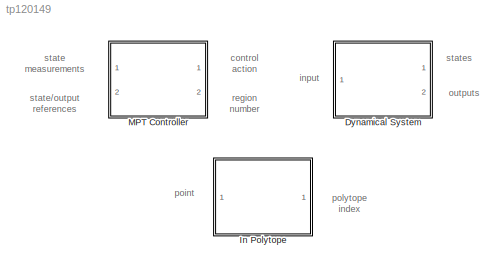
MODEL tp120149
KIND library
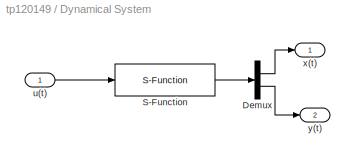
BLOCK [SubSystem] Dynamical System
  MaskCallbackString = |||
  MaskDescription = Gives state update and output as a function of current state and current input.
  MaskEnableString = on,on,on,on
  MaskHelp = This is equivalent to simulating a system using \"mpt_simSys\".
  MaskIconFrame = on
  MaskIconOpaque = on
  MaskIconRotate = none
  MaskIconUnits = autoscale
  MaskInitialization = if isempty(x0)\n	error('Initial state must be given!');\nend\nif ~isfield(sysStruct,'verified')\n	sysStruct = mpt_verifySysStruct(sysStruct);\nend\n[nx,nu,ny] = mpt_sysStructInfo(sysStruct);\nif length(x0(:))~=nx\n	error(['Initial state must be a ' num2str(nx) 'x1 vector!']);\nend\nif isfield(sysStruct, 'Ts')\n	ts = sysStruct.Ts;\nelse\n	ts = 1;\nend\nif isempty(Ts)\n	Ts = ts;\nelseif Ts==0\n	Ts =...<+135ch>
  MaskPromptString = System Structure|Initial State|Sampling Time (Leave empty to use default value stored in sysStruct)|Enforce Constraints
  MaskStyleString = edit,edit,edit,checkbox
  MaskToolTipString = on,on,on,on
  MaskTunableValueString = on,on,on,on
  MaskType = Dynamical System with Constraints
  MaskValueString = sysStruct|0|[]|on
  MaskVariables = sysStruct=@1;x0=@2;Ts=@3;constr=@4;
  MaskVisibilityString = on,on,on,on
  Permissions = ReadWrite
  Ports = [1, 2]
  RTWFcnNameOpts = Auto
  RTWFileNameOpts = Auto
  RTWSystemCode = Auto
  ShowPortLabels = on
  SimViewingDevice = off
  TreatAsAtomicUnit = off
BLOCK [Demux] Dynamical System/Demux
  BusSelectionMode = off
  Outputs = [nx ny]
  Ports = [1, 2]
BLOCK [S-Function] Dynamical System/S-Function
  FunctionName = mpt_simSys_sfunc
  Parameters = sysStruct,x0,Ts,nx,nu,ny,constr
  PortCounts = []
  Ports = [1, 1]
  SFunctionModules = ''
BLOCK [Inport] Dynamical System/u(t)
  DataType = auto
  Interpolate = on
  Port = 1
  PortDimensions = -1
  SampleTime = -1
  SignalType = auto
BLOCK [Outport] Dynamical System/x(t)
  InitialOutput = []
  OutputWhenDisabled = held
  Port = 1
BLOCK [Outport] Dynamical System/y(t)
  InitialOutput = []
  OutputWhenDisabled = held
  Port = 2
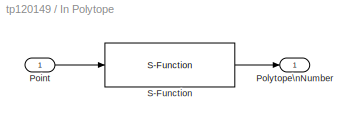
BLOCK [SubSystem] In Polytope
  AncestorBlock = mpt_sim/Polytope
  MaskDescription = Returns 0 if a given point is not inside of a given polytope, 1 otherwise.
  MaskDisplay = image(imread('mpt_polytope.jpg'));
  MaskEnableString = on
  MaskHelp = \n
  MaskIconFrame = on
  MaskIconOpaque = on
  MaskIconRotate = none
  MaskIconUnits = normalized
  MaskInitialization = if ~isfulldim(P),\n	error('Polytope must be fully dimensional!');\nend\n[nr, nx, abstol, H, K, nc] = mpt_getSfuncParam(P);\n
  MaskPromptString = Polytope
  MaskSelfModifiable = on
  MaskStyleString = edit
  MaskToolTipString = on
  MaskTunableValueString = off
  MaskType = In Polytope
  MaskVariables = P=@1;
  MaskVisibilityString = on
  Permissions = ReadWrite
  Ports = [1, 1]
  RTWFcnNameOpts = Auto
  RTWFileNameOpts = Auto
  RTWSystemCode = Auto
  ShowPortLabels = on
  SimViewingDevice = off
  TreatAsAtomicUnit = off
BLOCK [Inport] In Polytope/Point
  DataType = auto
  Interpolate = on
  Port = 1
  PortDimensions = -1
  SampleTime = -1
  SignalType = auto
BLOCK [Outport] In Polytope/Polytope\nNumber
  InitialOutput = []
  OutputWhenDisabled = held
  Port = 1
BLOCK [S-Function] In Polytope/S-Function
  FunctionName = mpt_isinside_sfunc
  Parameters = nr, nx, abstol, H, K, nc
  PortCounts = []
  Ports = [1, 1]
  SFunctionModules = ''
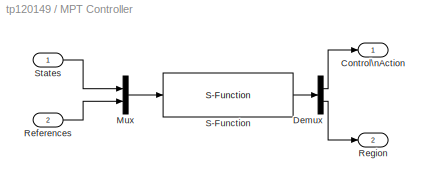
BLOCK [SubSystem] MPT Controller
  MaskCallbackString = ||
  MaskDescription = Evaluates a given explicit or on-line controller for a given state.
  MaskDisplay = image(imread('mpt_ctrl.jpg'));
  MaskEnableString = on,on,on
  MaskHelp = Evaluation of an explicit control law is performed by the C-code S-function \"mpt_getInput_sfunc_parm\". You can also use \"mpt_getInput_sfunc\" function, which requires the controller to be exported to C-code using \"mpt_exportc\".\n\nEvaluation of an on-line controller is performed by calling mpt_getInpit.m\n
  MaskIconFrame = on
  MaskIconOpaque = on
  MaskIconRotate = none
  MaskIconUnits = normalized
  MaskInitialization = if isempty(ctrl)\n	error('No controller specified!');\nend\nif ~isa(ctrl, 'mptctrl')\n	error('Controller must be an MPTCTRL object!');\nend\nif cancompile(ctrl)\n    [H, K, F, G, nc, nr, nx, nu, ny, nxt, nref, ts, dumode, tracking, abstol] = mpt_getSfuncParam(ctrl);\n    funname = 'mpt_getInput_sfunc_parm';\n    params = 'H, K, F, G, nc, nr, nx, nu, ny, nxt, nref, Ts, dumode, tracking, abstol, inf...<+404ch>
  MaskPromptString = MPT Controller Variable|Sampling Time (Leave empty to use default value stored in controller)|Stop simulation if no feasible control law can be found
  MaskSelfModifiable = on
  MaskStyleString = edit,edit,checkbox
  MaskToolTipString = on,on,on
  MaskTunableValueString = off,off,off
  MaskType = MPT Controller
  MaskValueString = |[]|on
  MaskVariables = ctrl=@1;Ts=@2;infbreak=@3;
  MaskVisibilityString = on,on,on
  Permissions = ReadWrite
  Ports = [2, 2]
  RTWFcnNameOpts = Auto
  RTWFileNameOpts = Auto
  RTWSystemCode = Auto
  ShowPortLabels = on
  SimViewingDevice = off
  TreatAsAtomicUnit = off
BLOCK [Outport] MPT Controller/Control\nAction
  InitialOutput = []
  OutputWhenDisabled = held
  Port = 1
BLOCK [Demux] MPT Controller/Demux
  BusSelectionMode = off
  Outputs = [nu 1]
  Ports = [1, 2]
BLOCK [Mux] MPT Controller/Mux
  DisplayOption = bar
  Inputs = 2
  Ports = [2, 1]
BLOCK [Inport] MPT Controller/References
  DataType = auto
  Interpolate = on
  Port = 2
  PortDimensions = -1
  SampleTime = -1
  SignalType = auto
BLOCK [Outport] MPT Controller/Region
  InitialOutput = []
  OutputWhenDisabled = held
  Port = 2
BLOCK [S-Function] MPT Controller/S-Function
  FunctionName = mpt_simInput_sfunc
  Parameters = ctrl, Ts
  PortCounts = []
  Ports = [1, 1]
  SFunctionModules = ''
BLOCK [Inport] MPT Controller/States
  DataType = auto
  Interpolate = on
  Port = 1
  PortDimensions = -1
  SampleTime = -1
  SignalType = auto
LINE Dynamical System/Demux:1 -> Dynamical System/x(t):1
LINE Dynamical System/Demux:2 -> Dynamical System/y(t):1
LINE Dynamical System/S-Function:1 -> Dynamical System/Demux:1
LINE Dynamical System/u(t):1 -> Dynamical System/S-Function:1
LINE In Polytope/Point:1 -> In Polytope/S-Function:1
LINE In Polytope/S-Function:1 -> In Polytope/Polytope\nNumber:1
LINE MPT Controller/Demux:1 -> MPT Controller/Control\nAction:1
LINE MPT Controller/Demux:2 -> MPT Controller/Region:1
LINE MPT Controller/Mux:1 -> MPT Controller/S-Function:1
LINE MPT Controller/References:1 -> MPT Controller/Mux:2
LINE MPT Controller/S-Function:1 -> MPT Controller/Demux:1
LINE MPT Controller/States:1 -> MPT Controller/Mux:1
